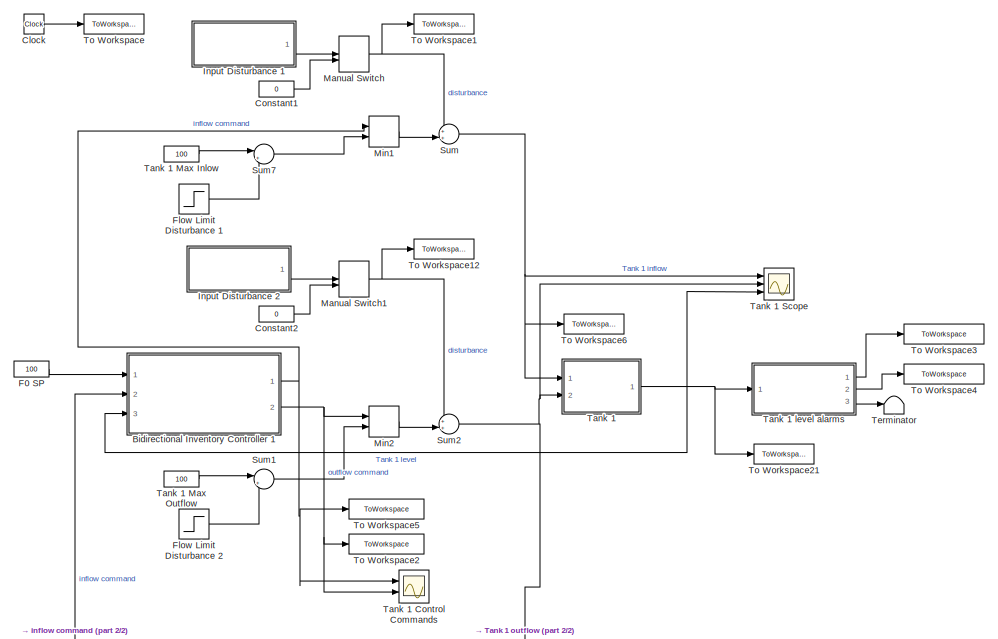
[diagram: root canvas - part 1/2, full width, top band]
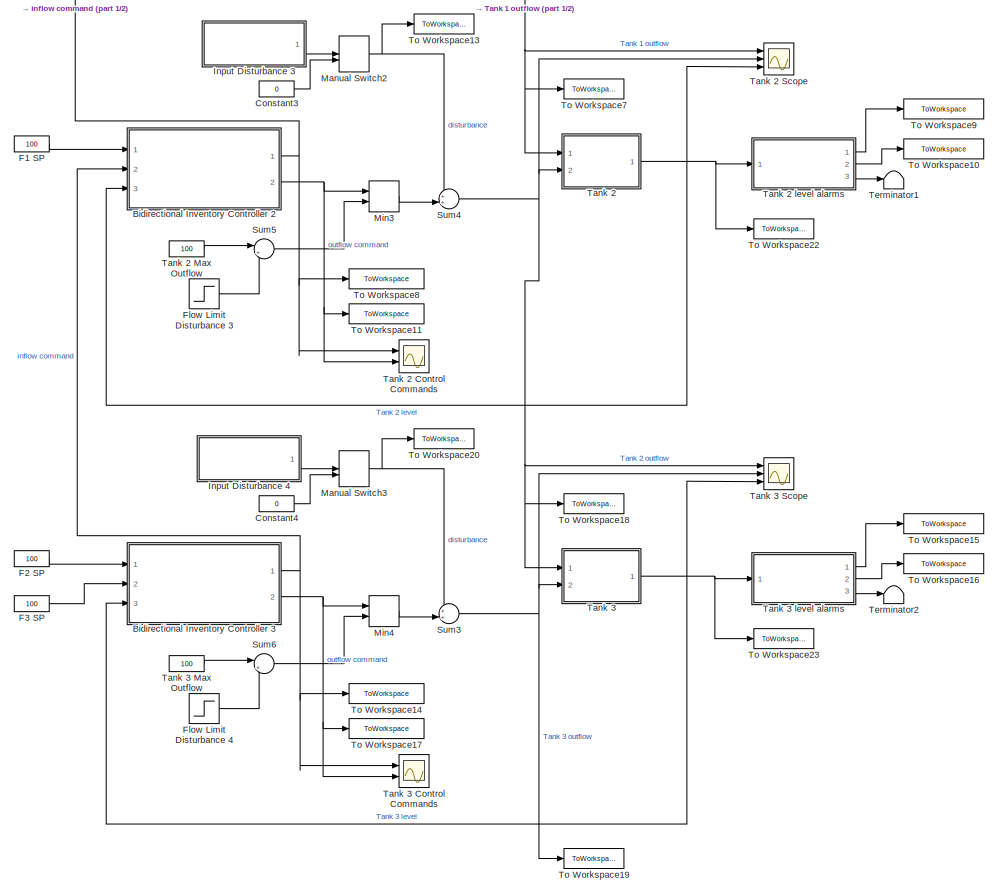
[diagram: root canvas - part 2/2, full width, bottom band]
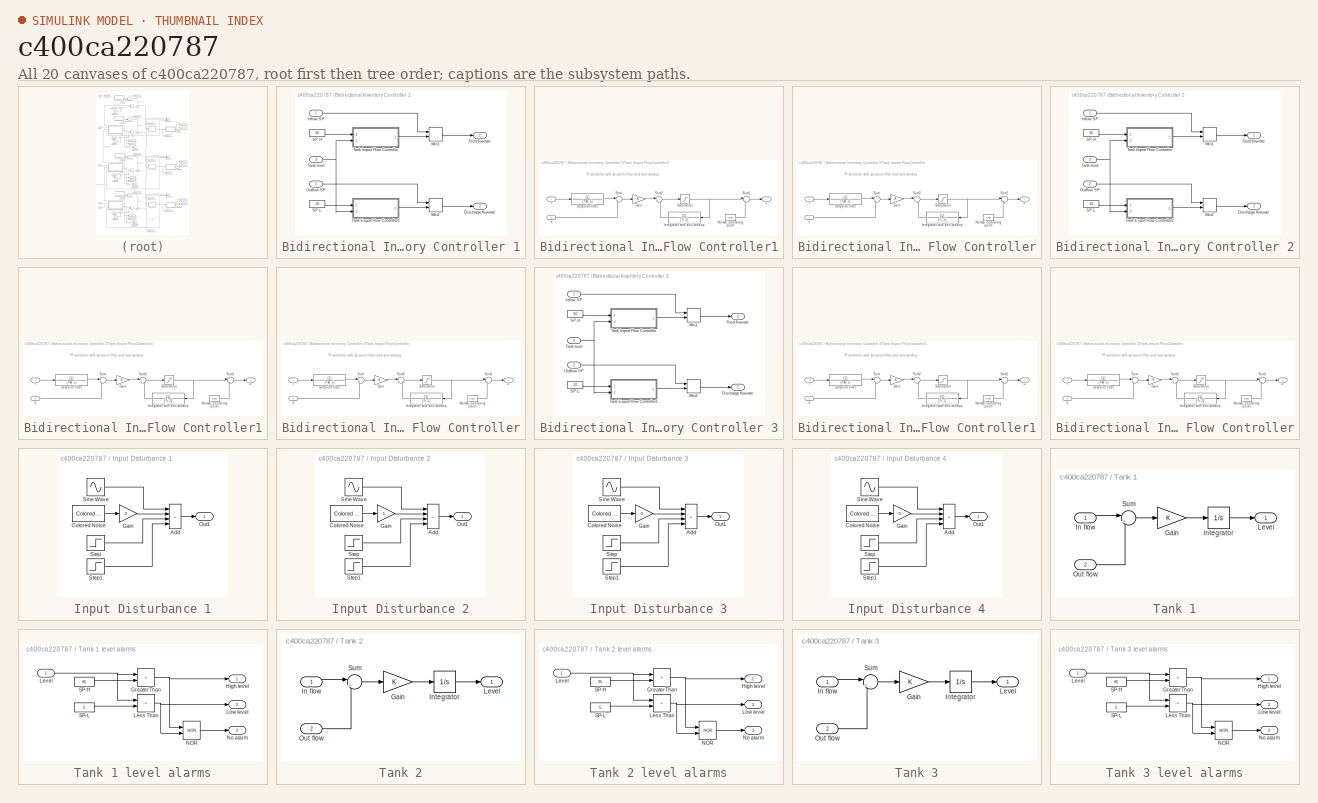
[diagram: thumbnail index - all 20 canvases of the model, root first then tree order]
MODEL slx_c400ca220787
KIND model
CONFIG AbsTol = auto
CONFIG EnableMultiTasking = off
CONFIG FixedStep = auto
CONFIG MaxStep = auto
CONFIG MinStep = auto
CONFIG RelTol = 1e-3
CONFIG SampleTimeConstraint = Unconstrained
CONFIG SolverName = VariableStepAuto
CONFIG StartTime = 0.0
CONFIG StopTime = 1000
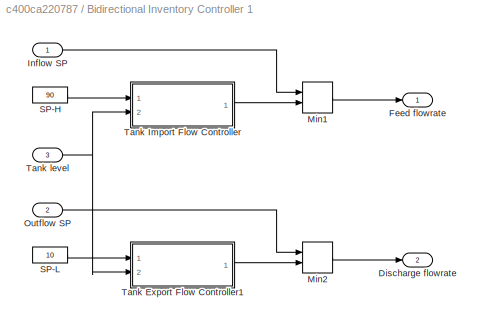
BLOCK [SubSystem] Bidirectional Inventory Controller 1
  Ports = [3, 2]
  RequestExecContextInheritance = off
BLOCK [Outport] Bidirectional Inventory Controller 1/Discharge flowrate
  Port = 2
BLOCK [Outport] Bidirectional Inventory Controller 1/Feed flowrate
BLOCK [Inport] Bidirectional Inventory Controller 1/Inflow SP
BLOCK [MinMax] Bidirectional Inventory Controller 1/Min1
  Inputs = 2
  Ports = [2, 1]
BLOCK [MinMax] Bidirectional Inventory Controller 1/Min2
  Inputs = 2
  Ports = [2, 1]
BLOCK [Inport] Bidirectional Inventory Controller 1/Outflow SP
  Port = 2
BLOCK [Constant] Bidirectional Inventory Controller 1/SP-H
  Value = 90
BLOCK [Constant] Bidirectional Inventory Controller 1/SP-L
  Value = 10
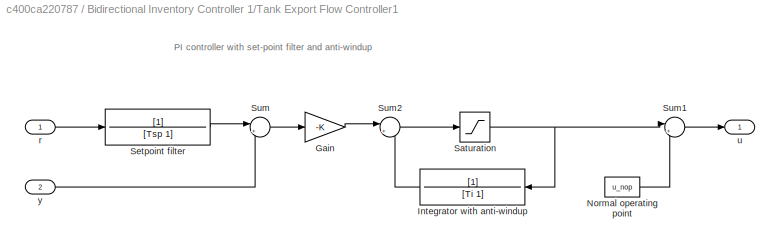
BLOCK [SubSystem] Bidirectional Inventory Controller 1/Tank Export Flow Controller1
  Ports = [2, 1]
  RequestExecContextInheritance = off
BLOCK [Gain] Bidirectional Inventory Controller 1/Tank Export Flow Controller1/Gain
  Gain = -K
BLOCK [TransferFcn] Bidirectional Inventory Controller 1/Tank Export Flow Controller1/Integrator with anti-windup
  Denominator = [Ti 1]
BLOCK [Constant] Bidirectional Inventory Controller 1/Tank Export Flow Controller1/Normal operating point
  Value = u_nop
BLOCK [Saturate] Bidirectional Inventory Controller 1/Tank Export Flow Controller1/Saturation
  LowerLimit = -50
  UpperLimit = 50
BLOCK [TransferFcn] Bidirectional Inventory Controller 1/Tank Export Flow Controller1/Setpoint filter
  Denominator = [Tsp 1]
BLOCK [Sum] Bidirectional Inventory Controller 1/Tank Export Flow Controller1/Sum
  Inputs = |+-
  Ports = [2, 1]
BLOCK [Sum] Bidirectional Inventory Controller 1/Tank Export Flow Controller1/Sum1
  Inputs = |++
  Ports = [2, 1]
BLOCK [Sum] Bidirectional Inventory Controller 1/Tank Export Flow Controller1/Sum2
  Inputs = |++
  Ports = [2, 1]
BLOCK [Inport] Bidirectional Inventory Controller 1/Tank Export Flow Controller1/r
BLOCK [Outport] Bidirectional Inventory Controller 1/Tank Export Flow Controller1/u
BLOCK [Inport] Bidirectional Inventory Controller 1/Tank Export Flow Controller1/y
  Port = 2
BLOCK [SubSystem] Bidirectional Inventory Controller 1/Tank Import Flow Controller
  Ports = [2, 1]
  RequestExecContextInheritance = off
BLOCK [Gain] Bidirectional Inventory Controller 1/Tank Import Flow Controller/Gain
  Gain = K
BLOCK [TransferFcn] Bidirectional Inventory Controller 1/Tank Import Flow Controller/Integrator with anti-windup
  Denominator = [Ti 1]
BLOCK [Constant] Bidirectional Inventory Controller 1/Tank Import Flow Controller/Normal operating point
  Value = u_nop
BLOCK [Saturate] Bidirectional Inventory Controller 1/Tank Import Flow Controller/Saturation
  LowerLimit = -50
  UpperLimit = 50
BLOCK [TransferFcn] Bidirectional Inventory Controller 1/Tank Import Flow Controller/Setpoint filter
  Denominator = [Tsp 1]
BLOCK [Sum] Bidirectional Inventory Controller 1/Tank Import Flow Controller/Sum
  Inputs = |+-
  Ports = [2, 1]
BLOCK [Sum] Bidirectional Inventory Controller 1/Tank Import Flow Controller/Sum1
  Inputs = |++
  Ports = [2, 1]
BLOCK [Sum] Bidirectional Inventory Controller 1/Tank Import Flow Controller/Sum2
  Inputs = |++
  Ports = [2, 1]
BLOCK [Inport] Bidirectional Inventory Controller 1/Tank Import Flow Controller/r
BLOCK [Outport] Bidirectional Inventory Controller 1/Tank Import Flow Controller/u
BLOCK [Inport] Bidirectional Inventory Controller 1/Tank Import Flow Controller/y
  Port = 2
BLOCK [Inport] Bidirectional Inventory Controller 1/Tank level
  Port = 3
BLOCK [SubSystem] Bidirectional Inventory Controller 2
  Ports = [3, 2]
  RequestExecContextInheritance = off
BLOCK [Outport] Bidirectional Inventory Controller 2/Discharge flowrate
  Port = 2
BLOCK [Outport] Bidirectional Inventory Controller 2/Feed flowrate
BLOCK [Inport] Bidirectional Inventory Controller 2/Inflow SP
BLOCK [MinMax] Bidirectional Inventory Controller 2/Min1
  Inputs = 2
  Ports = [2, 1]
BLOCK [MinMax] Bidirectional Inventory Controller 2/Min2
  Inputs = 2
  Ports = [2, 1]
BLOCK [Inport] Bidirectional Inventory Controller 2/Outflow SP
  Port = 2
BLOCK [Constant] Bidirectional Inventory Controller 2/SP-H
  Value = 90
BLOCK [Constant] Bidirectional Inventory Controller 2/SP-L
  Value = 10
BLOCK [SubSystem] Bidirectional Inventory Controller 2/Tank Export Flow Controller1
  Ports = [2, 1]
  RequestExecContextInheritance = off
BLOCK [Gain] Bidirectional Inventory Controller 2/Tank Export Flow Controller1/Gain
  Gain = -K
BLOCK [TransferFcn] Bidirectional Inventory Controller 2/Tank Export Flow Controller1/Integrator with anti-windup
  Denominator = [Ti 1]
BLOCK [Constant] Bidirectional Inventory Controller 2/Tank Export Flow Controller1/Normal operating point
  Value = u_nop
BLOCK [Saturate] Bidirectional Inventory Controller 2/Tank Export Flow Controller1/Saturation
  LowerLimit = -50
  UpperLimit = 50
BLOCK [TransferFcn] Bidirectional Inventory Controller 2/Tank Export Flow Controller1/Setpoint filter
  Denominator = [Tsp 1]
BLOCK [Sum] Bidirectional Inventory Controller 2/Tank Export Flow Controller1/Sum
  Inputs = |+-
  Ports = [2, 1]
BLOCK [Sum] Bidirectional Inventory Controller 2/Tank Export Flow Controller1/Sum1
  Inputs = |++
  Ports = [2, 1]
BLOCK [Sum] Bidirectional Inventory Controller 2/Tank Export Flow Controller1/Sum2
  Inputs = |++
  Ports = [2, 1]
BLOCK [Inport] Bidirectional Inventory Controller 2/Tank Export Flow Controller1/r
BLOCK [Outport] Bidirectional Inventory Controller 2/Tank Export Flow Controller1/u
BLOCK [Inport] Bidirectional Inventory Controller 2/Tank Export Flow Controller1/y
  Port = 2
BLOCK [SubSystem] Bidirectional Inventory Controller 2/Tank Import Flow Controller
  Ports = [2, 1]
  RequestExecContextInheritance = off
BLOCK [Gain] Bidirectional Inventory Controller 2/Tank Import Flow Controller/Gain
  Gain = K
BLOCK [TransferFcn] Bidirectional Inventory Controller 2/Tank Import Flow Controller/Integrator with anti-windup
  Denominator = [Ti 1]
BLOCK [Constant] Bidirectional Inventory Controller 2/Tank Import Flow Controller/Normal operating point
  Value = u_nop
BLOCK [Saturate] Bidirectional Inventory Controller 2/Tank Import Flow Controller/Saturation
  LowerLimit = -50
  UpperLimit = 50
BLOCK [TransferFcn] Bidirectional Inventory Controller 2/Tank Import Flow Controller/Setpoint filter
  Denominator = [Tsp 1]
BLOCK [Sum] Bidirectional Inventory Controller 2/Tank Import Flow Controller/Sum
  Inputs = |+-
  Ports = [2, 1]
BLOCK [Sum] Bidirectional Inventory Controller 2/Tank Import Flow Controller/Sum1
  Inputs = |++
  Ports = [2, 1]
BLOCK [Sum] Bidirectional Inventory Controller 2/Tank Import Flow Controller/Sum2
  Inputs = |++
  Ports = [2, 1]
BLOCK [Inport] Bidirectional Inventory Controller 2/Tank Import Flow Controller/r
BLOCK [Outport] Bidirectional Inventory Controller 2/Tank Import Flow Controller/u
BLOCK [Inport] Bidirectional Inventory Controller 2/Tank Import Flow Controller/y
  Port = 2
BLOCK [Inport] Bidirectional Inventory Controller 2/Tank level
  Port = 3
BLOCK [SubSystem] Bidirectional Inventory Controller 3
  Ports = [3, 2]
  RequestExecContextInheritance = off
BLOCK [Outport] Bidirectional Inventory Controller 3/Discharge flowrate
  Port = 2
BLOCK [Outport] Bidirectional Inventory Controller 3/Feed flowrate
BLOCK [Inport] Bidirectional Inventory Controller 3/Inflow SP
BLOCK [MinMax] Bidirectional Inventory Controller 3/Min1
  Inputs = 2
  Ports = [2, 1]
BLOCK [MinMax] Bidirectional Inventory Controller 3/Min2
  Inputs = 2
  Ports = [2, 1]
BLOCK [Inport] Bidirectional Inventory Controller 3/Outflow SP
  Port = 2
BLOCK [Constant] Bidirectional Inventory Controller 3/SP-H
  Value = 90
BLOCK [Constant] Bidirectional Inventory Controller 3/SP-L
  Value = 10
BLOCK [SubSystem] Bidirectional Inventory Controller 3/Tank Export Flow Controller1
  Ports = [2, 1]
  RequestExecContextInheritance = off
BLOCK [Gain] Bidirectional Inventory Controller 3/Tank Export Flow Controller1/Gain
  Gain = -K
BLOCK [TransferFcn] Bidirectional Inventory Controller 3/Tank Export Flow Controller1/Integrator with anti-windup
  Denominator = [Ti 1]
BLOCK [Constant] Bidirectional Inventory Controller 3/Tank Export Flow Controller1/Normal operating point
  Value = u_nop
BLOCK [Saturate] Bidirectional Inventory Controller 3/Tank Export Flow Controller1/Saturation
  LowerLimit = -50
  UpperLimit = 50
BLOCK [TransferFcn] Bidirectional Inventory Controller 3/Tank Export Flow Controller1/Setpoint filter
  Denominator = [Tsp 1]
BLOCK [Sum] Bidirectional Inventory Controller 3/Tank Export Flow Controller1/Sum
  Inputs = |+-
  Ports = [2, 1]
BLOCK [Sum] Bidirectional Inventory Controller 3/Tank Export Flow Controller1/Sum1
  Inputs = |++
  Ports = [2, 1]
BLOCK [Sum] Bidirectional Inventory Controller 3/Tank Export Flow Controller1/Sum2
  Inputs = |++
  Ports = [2, 1]
BLOCK [Inport] Bidirectional Inventory Controller 3/Tank Export Flow Controller1/r
BLOCK [Outport] Bidirectional Inventory Controller 3/Tank Export Flow Controller1/u
BLOCK [Inport] Bidirectional Inventory Controller 3/Tank Export Flow Controller1/y
  Port = 2
BLOCK [SubSystem] Bidirectional Inventory Controller 3/Tank Import Flow Controller
  Ports = [2, 1]
  RequestExecContextInheritance = off
BLOCK [Gain] Bidirectional Inventory Controller 3/Tank Import Flow Controller/Gain
  Gain = K
BLOCK [TransferFcn] Bidirectional Inventory Controller 3/Tank Import Flow Controller/Integrator with anti-windup
  Denominator = [Ti 1]
BLOCK [Constant] Bidirectional Inventory Controller 3/Tank Import Flow Controller/Normal operating point
  Value = u_nop
BLOCK [Saturate] Bidirectional Inventory Controller 3/Tank Import Flow Controller/Saturation
  LowerLimit = -50
  UpperLimit = 50
BLOCK [TransferFcn] Bidirectional Inventory Controller 3/Tank Import Flow Controller/Setpoint filter
  Denominator = [Tsp 1]
BLOCK [Sum] Bidirectional Inventory Controller 3/Tank Import Flow Controller/Sum
  Inputs = |+-
  Ports = [2, 1]
BLOCK [Sum] Bidirectional Inventory Controller 3/Tank Import Flow Controller/Sum1
  Inputs = |++
  Ports = [2, 1]
BLOCK [Sum] Bidirectional Inventory Controller 3/Tank Import Flow Controller/Sum2
  Inputs = |++
  Ports = [2, 1]
BLOCK [Inport] Bidirectional Inventory Controller 3/Tank Import Flow Controller/r
BLOCK [Outport] Bidirectional Inventory Controller 3/Tank Import Flow Controller/u
BLOCK [Inport] Bidirectional Inventory Controller 3/Tank Import Flow Controller/y
  Port = 2
BLOCK [Inport] Bidirectional Inventory Controller 3/Tank level
  Port = 3
BLOCK [Clock] Clock
BLOCK [Constant] Constant1
  SampleTime = 1
  Value = 0
BLOCK [Constant] Constant2
  SampleTime = 1
  Value = 0
BLOCK [Constant] Constant3
  SampleTime = 1
  Value = 0
BLOCK [Constant] Constant4
  SampleTime = 1
  Value = 0
BLOCK [Constant] F0 SP
  Value = 100
BLOCK [Constant] F1 SP
  Value = 100
  VectorParams1D = off
BLOCK [Constant] F2 SP
  Value = 100
BLOCK [Constant] F3 SP
  Value = 100
  VectorParams1D = off
BLOCK [Step] Flow Limit Disturbance 1
  After = -40
  SampleTime = 0
  Time = 100
BLOCK [Step] Flow Limit Disturbance 2
  After = 0
  SampleTime = 0
  Time = 500
BLOCK [Step] Flow Limit Disturbance 3
  After = 0
  SampleTime = 0
  Time = 100
BLOCK [Step] Flow Limit Disturbance 4
  After = -40
  SampleTime = 0
  Time = 100
BLOCK [SubSystem] Input Disturbance 1
  Ports = [0, 1]
  RequestExecContextInheritance = off
BLOCK [Sum] Input Disturbance 1/Add
  IconShape = rectangular
  Inputs = ++++
  Ports = [4, 1]
BLOCK [Reference] Input Disturbance 1/Colored Noise  REF=dspsrcs4/Colored Noise
  Ports = [0, 1]
  SourceBlock = dspsrcs4/Colored Noise
  SourceProductBaseCode = DS
  SourceType = dsp.simulink.ColoredNoise
BLOCK [Gain] Input Disturbance 1/Gain
  Gain = 3
BLOCK [Outport] Input Disturbance 1/Out1
BLOCK [Sin] Input Disturbance 1/Sine Wave
  Amplitude = 0
  Frequency = 1/60
  Ports = [0, 1]
  SampleTime = 0
BLOCK [Step] Input Disturbance 1/Step
  After = 0
  SampleTime = 0
  Time = 100
BLOCK [Step] Input Disturbance 1/Step1
  After = 0
  SampleTime = 0
  Time = 200
BLOCK [SubSystem] Input Disturbance 2
  Ports = [0, 1]
  RequestExecContextInheritance = off
BLOCK [Sum] Input Disturbance 2/Add
  IconShape = rectangular
  Inputs = ++++
  Ports = [4, 1]
BLOCK [Reference] Input Disturbance 2/Colored Noise  REF=dspsrcs4/Colored Noise
  Ports = [0, 1]
  SourceBlock = dspsrcs4/Colored Noise
  SourceProductBaseCode = DS
  SourceType = dsp.simulink.ColoredNoise
BLOCK [Gain] Input Disturbance 2/Gain
  Gain = 5
BLOCK [Outport] Input Disturbance 2/Out1
BLOCK [Sin] Input Disturbance 2/Sine Wave
  Amplitude = 10
  Frequency = 1/60
  Ports = [0, 1]
  SampleTime = 0
BLOCK [Step] Input Disturbance 2/Step
  After = 0
  SampleTime = 0
  Time = 100
BLOCK [Step] Input Disturbance 2/Step1
  After = 0
  SampleTime = 0
  Time = 200
BLOCK [SubSystem] Input Disturbance 3
  Ports = [0, 1]
  RequestExecContextInheritance = off
BLOCK [Sum] Input Disturbance 3/Add
  IconShape = rectangular
  Inputs = ++++
  Ports = [4, 1]
BLOCK [Reference] Input Disturbance 3/Colored Noise  REF=dspsrcs4/Colored Noise
  Ports = [0, 1]
  SourceBlock = dspsrcs4/Colored Noise
  SourceProductBaseCode = DS
  SourceType = dsp.simulink.ColoredNoise
BLOCK [Gain] Input Disturbance 3/Gain
  Gain = 0
BLOCK [Outport] Input Disturbance 3/Out1
BLOCK [Sin] Input Disturbance 3/Sine Wave
  Amplitude = 10
  Frequency = 1/60
  Ports = [0, 1]
  SampleTime = 0
BLOCK [Step] Input Disturbance 3/Step
  After = 0
  SampleTime = 0
  Time = 100
BLOCK [Step] Input Disturbance 3/Step1
  After = 0
  SampleTime = 0
  Time = 200
BLOCK [SubSystem] Input Disturbance 4
  Ports = [0, 1]
  RequestExecContextInheritance = off
BLOCK [Sum] Input Disturbance 4/Add
  IconShape = rectangular
  Inputs = ++++
  Ports = [4, 1]
BLOCK [Reference] Input Disturbance 4/Colored Noise  REF=dspsrcs4/Colored Noise
  Ports = [0, 1]
  SourceBlock = dspsrcs4/Colored Noise
  SourceProductBaseCode = DS
  SourceType = dsp.simulink.ColoredNoise
BLOCK [Gain] Input Disturbance 4/Gain
  Gain = 0
BLOCK [Outport] Input Disturbance 4/Out1
BLOCK [Sin] Input Disturbance 4/Sine Wave
  Amplitude = 0
  Frequency = 1/60
  Ports = [0, 1]
  SampleTime = 0
BLOCK [Step] Input Disturbance 4/Step
  After = 0
  SampleTime = 0
  Time = 100
BLOCK [Step] Input Disturbance 4/Step1
  After = 0
  SampleTime = 0
  Time = 200
BLOCK [ManualSwitch] Manual Switch
  CurrentSetting = 0
BLOCK [ManualSwitch] Manual Switch1
  CurrentSetting = 0
BLOCK [ManualSwitch] Manual Switch2
  CurrentSetting = 0
BLOCK [ManualSwitch] Manual Switch3
  CurrentSetting = 0
BLOCK [MinMax] Min1
  Inputs = 2
  Ports = [2, 1]
BLOCK [MinMax] Min2
  Inputs = 2
  Ports = [2, 1]
BLOCK [MinMax] Min3
  Inputs = 2
  Ports = [2, 1]
BLOCK [MinMax] Min4
  Inputs = 2
  Ports = [2, 1]
BLOCK [Sum] Sum
  Inputs = ++|
  Ports = [2, 1]
BLOCK [Sum] Sum1
  Inputs = |++
  Ports = [2, 1]
BLOCK [Sum] Sum2
  Inputs = ++|
  Ports = [2, 1]
BLOCK [Sum] Sum3
  Inputs = ++|
  Ports = [2, 1]
BLOCK [Sum] Sum4
  Inputs = ++|
  Ports = [2, 1]
BLOCK [Sum] Sum5
  Inputs = |++
  Ports = [2, 1]
BLOCK [Sum] Sum6
  Inputs = |++
  Ports = [2, 1]
BLOCK [Sum] Sum7
  Inputs = |++
  Ports = [2, 1]
BLOCK [SubSystem] Tank 1
  Ports = [2, 1]
  RequestExecContextInheritance = off
BLOCK [Scope] Tank 1 Control Commands
  Floating = off
  NumInputPorts = 2
  Ports = [2]
  ScopeSpecificationString = Simulink.scopes.TimeScopeBlockCfg('CurrentConfiguration', extmgr.ConfigurationSet(extmgr.Configuration('Core','General UI',true,'FigureColor',[1 1 1]),extmgr.Configuration('Core','Source UI',true),extmgr.Configuration('Sources','WiredSimulink',true,'DataLoggingVariableName','ScopeData1'),extmgr.Configuration('Visuals','Time Domain',true,'SerializedDisplays',{struct('MinYLimReal','-12.5','MaxYLimRe...<+1967ch>
BLOCK [Constant] Tank 1 Max Inlow
  Value = 100
BLOCK [Constant] Tank 1 Max Outflow
  Value = 100
BLOCK [Scope] Tank 1 Scope
  Floating = off
  NumInputPorts = 3
  Ports = [3]
  ScopeSpecificationString = Simulink.scopes.TimeScopeBlockCfg('CurrentConfiguration', extmgr.ConfigurationSet(extmgr.Configuration('Core','General UI',true,'FigureColor',[1 1 1]),extmgr.Configuration('Core','Source UI',true),extmgr.Configuration('Sources','WiredSimulink',true,'DataLoggingVariableName','ScopeData1'),extmgr.Configuration('Visuals','Time Domain',true,'SerializedDisplays',{struct('MinYLimReal','-12.5','MaxYLimRe...<+1980ch>
BLOCK [SubSystem] Tank 1 level alarms
  Ports = [1, 3]
  RequestExecContextInheritance = off
BLOCK [RelationalOperator] Tank 1 level alarms/GreaterThan
  InputSameDT = off
  Operator = >
  OutDataTypeStr = boolean
  Ports = [2, 1]
  RndMeth = Simplest
BLOCK [Outport] Tank 1 level alarms/High level
BLOCK [RelationalOperator] Tank 1 level alarms/Less Than
  InputSameDT = off
  Operator = <
  OutDataTypeStr = boolean
  Ports = [2, 1]
  RndMeth = Simplest
BLOCK [Inport] Tank 1 level alarms/Level
BLOCK [Outport] Tank 1 level alarms/Low level
  Port = 2
BLOCK [Logic] Tank 1 level alarms/NOR
  AllPortsSameDT = off
  IconShape = distinctive
  Operator = NOR
  OutDataTypeStr = boolean
  Ports = [2, 1]
BLOCK [Outport] Tank 1 level alarms/No alarm
  Port = 3
BLOCK [Constant] Tank 1 level alarms/SP-H
  Value = 95
BLOCK [Constant] Tank 1 level alarms/SP-L
  Value = 5
BLOCK [Gain] Tank 1/Gain
  Gain = K
BLOCK [Inport] Tank 1/In flow
BLOCK [Integrator] Tank 1/Integrator
  InitialCondition = y0
  Ports = [1, 1]
BLOCK [Outport] Tank 1/Level
  InitialOutput = 0
BLOCK [Inport] Tank 1/Out flow
  Port = 2
BLOCK [Sum] Tank 1/Sum
  Inputs = |+-
  Ports = [2, 1]
BLOCK [SubSystem] Tank 2
  Ports = [2, 1]
  RequestExecContextInheritance = off
BLOCK [Scope] Tank 2 Control Commands
  Floating = off
  NumInputPorts = 2
  Ports = [2]
  ScopeSpecificationString = Simulink.scopes.TimeScopeBlockCfg('CurrentConfiguration', extmgr.ConfigurationSet(extmgr.Configuration('Core','General UI',true,'FigureColor',[1 1 1]),extmgr.Configuration('Core','Source UI',true),extmgr.Configuration('Sources','WiredSimulink',true,'DataLoggingVariableName','ScopeData2'),extmgr.Configuration('Visuals','Time Domain',true,'SerializedDisplays',{struct('MinYLimReal','-12.5','MaxYLimRe...<+1968ch>
BLOCK [Constant] Tank 2 Max Outflow
  Value = 100
BLOCK [Scope] Tank 2 Scope
  Floating = off
  NumInputPorts = 3
  Ports = [3]
  ScopeSpecificationString = Simulink.scopes.TimeScopeBlockCfg('CurrentConfiguration', extmgr.ConfigurationSet(extmgr.Configuration('Core','General UI',true,'FigureColor',[1 1 1]),extmgr.Configuration('Core','Source UI',true),extmgr.Configuration('Sources','WiredSimulink',true,'DataLoggingVariableName','ScopeData3'),extmgr.Configuration('Visuals','Time Domain',true,'SerializedDisplays',{struct('MinYLimReal','-12.5','MaxYLimRe...<+1982ch>
BLOCK [SubSystem] Tank 2 level alarms
  Ports = [1, 3]
  RequestExecContextInheritance = off
BLOCK [RelationalOperator] Tank 2 level alarms/GreaterThan
  InputSameDT = off
  Operator = >
  OutDataTypeStr = boolean
  Ports = [2, 1]
  RndMeth = Simplest
BLOCK [Outport] Tank 2 level alarms/High level
BLOCK [RelationalOperator] Tank 2 level alarms/Less Than
  InputSameDT = off
  Operator = <
  OutDataTypeStr = boolean
  Ports = [2, 1]
  RndMeth = Simplest
BLOCK [Inport] Tank 2 level alarms/Level
BLOCK [Outport] Tank 2 level alarms/Low level
  Port = 2
BLOCK [Logic] Tank 2 level alarms/NOR
  AllPortsSameDT = off
  IconShape = distinctive
  Operator = NOR
  OutDataTypeStr = boolean
  Ports = [2, 1]
BLOCK [Outport] Tank 2 level alarms/No alarm
  Port = 3
BLOCK [Constant] Tank 2 level alarms/SP-H
  Value = 95
BLOCK [Constant] Tank 2 level alarms/SP-L
  Value = 5
BLOCK [Gain] Tank 2/Gain
  Gain = K
BLOCK [Inport] Tank 2/In flow
BLOCK [Integrator] Tank 2/Integrator
  InitialCondition = y0
  Ports = [1, 1]
BLOCK [Outport] Tank 2/Level
  InitialOutput = 0
BLOCK [Inport] Tank 2/Out flow
  Port = 2
BLOCK [Sum] Tank 2/Sum
  Inputs = |+-
  Ports = [2, 1]
BLOCK [SubSystem] Tank 3
  Ports = [2, 1]
  RequestExecContextInheritance = off
BLOCK [Scope] Tank 3 Control Commands
  Floating = off
  NumInputPorts = 2
  Ports = [2]
  ScopeSpecificationString = Simulink.scopes.TimeScopeBlockCfg('CurrentConfiguration', extmgr.ConfigurationSet(extmgr.Configuration('Core','General UI',true,'FigureColor',[1 1 1]),extmgr.Configuration('Core','Source UI',true),extmgr.Configuration('Sources','WiredSimulink',true,'DataLoggingVariableName','ScopeData4'),extmgr.Configuration('Visuals','Time Domain',true,'SerializedDisplays',{struct('MinYLimReal','-12.5','MaxYLimRe...<+1968ch>
BLOCK [Constant] Tank 3 Max Outflow
  Value = 100
BLOCK [Scope] Tank 3 Scope
  Floating = off
  NumInputPorts = 3
  Ports = [3]
  ScopeSpecificationString = Simulink.scopes.TimeScopeBlockCfg('CurrentConfiguration', extmgr.ConfigurationSet(extmgr.Configuration('Core','General UI',true,'FigureColor',[1 1 1]),extmgr.Configuration('Core','Source UI',true),extmgr.Configuration('Sources','WiredSimulink',true,'DataLoggingVariableName','ScopeData5'),extmgr.Configuration('Visuals','Time Domain',true,'SerializedDisplays',{struct('MinYLimReal','-12.5','MaxYLimRe...<+1982ch>
BLOCK [SubSystem] Tank 3 level alarms
  Ports = [1, 3]
  RequestExecContextInheritance = off
BLOCK [RelationalOperator] Tank 3 level alarms/GreaterThan
  InputSameDT = off
  Operator = >
  OutDataTypeStr = boolean
  Ports = [2, 1]
  RndMeth = Simplest
BLOCK [Outport] Tank 3 level alarms/High level
BLOCK [RelationalOperator] Tank 3 level alarms/Less Than
  InputSameDT = off
  Operator = <
  OutDataTypeStr = boolean
  Ports = [2, 1]
  RndMeth = Simplest
BLOCK [Inport] Tank 3 level alarms/Level
BLOCK [Outport] Tank 3 level alarms/Low level
  Port = 2
BLOCK [Logic] Tank 3 level alarms/NOR
  AllPortsSameDT = off
  IconShape = distinctive
  Operator = NOR
  OutDataTypeStr = boolean
  Ports = [2, 1]
BLOCK [Outport] Tank 3 level alarms/No alarm
  Port = 3
BLOCK [Constant] Tank 3 level alarms/SP-H
  Value = 95
BLOCK [Constant] Tank 3 level alarms/SP-L
  Value = 5
BLOCK [Gain] Tank 3/Gain
  Gain = K
BLOCK [Inport] Tank 3/In flow
BLOCK [Integrator] Tank 3/Integrator
  InitialCondition = y0
  Ports = [1, 1]
BLOCK [Outport] Tank 3/Level
  InitialOutput = 0
BLOCK [Inport] Tank 3/Out flow
  Port = 2
BLOCK [Sum] Tank 3/Sum
  Inputs = |+-
  Ports = [2, 1]
BLOCK [Terminator] Terminator
BLOCK [Terminator] Terminator1
BLOCK [Terminator] Terminator2
BLOCK [ToWorkspace] To Workspace
  FixptAsFi = on
  MaxDataPoints = inf
  Ports = [1]
  SampleTime = 1
  VariableName = t
BLOCK [ToWorkspace] To Workspace1
  FixptAsFi = on
  MaxDataPoints = inf
  Ports = [1]
  SampleTime = 1
  Save2DSignal = 2-D array (concatenate along first dimension)
  VariableName = p1
BLOCK [ToWorkspace] To Workspace10
  FixptAsFi = on
  MaxDataPoints = inf
  Ports = [1]
  SampleTime = 1
  VariableName = LA2_L
BLOCK [ToWorkspace] To Workspace11
  FixptAsFi = on
  MaxDataPoints = inf
  Ports = [1]
  SampleTime = 1
  VariableName = u2_out
BLOCK [ToWorkspace] To Workspace12
  FixptAsFi = on
  MaxDataPoints = inf
  Ports = [1]
  SampleTime = 1
  Save2DSignal = 2-D array (concatenate along first dimension)
  VariableName = p2
BLOCK [ToWorkspace] To Workspace13
  FixptAsFi = on
  MaxDataPoints = inf
  Ports = [1]
  SampleTime = 1
  Save2DSignal = 2-D array (concatenate along first dimension)
  VariableName = p3
BLOCK [ToWorkspace] To Workspace14
  FixptAsFi = on
  MaxDataPoints = inf
  Ports = [1]
  SampleTime = 1
  VariableName = u3_in
BLOCK [ToWorkspace] To Workspace15
  FixptAsFi = on
  MaxDataPoints = inf
  Ports = [1]
  SampleTime = 1
  VariableName = LA3_H
BLOCK [ToWorkspace] To Workspace16
  FixptAsFi = on
  MaxDataPoints = inf
  Ports = [1]
  SampleTime = 1
  VariableName = LA3_L
BLOCK [ToWorkspace] To Workspace17
  FixptAsFi = on
  MaxDataPoints = inf
  Ports = [1]
  SampleTime = 1
  VariableName = u3_out
BLOCK [ToWorkspace] To Workspace18
  FixptAsFi = on
  MaxDataPoints = inf
  Ports = [1]
  SampleTime = 1
  VariableName = F2
BLOCK [ToWorkspace] To Workspace19
  FixptAsFi = on
  MaxDataPoints = inf
  Ports = [1]
  SampleTime = 1
  VariableName = F3
BLOCK [ToWorkspace] To Workspace2
  FixptAsFi = on
  MaxDataPoints = inf
  Ports = [1]
  SampleTime = 1
  VariableName = u1_out
BLOCK [ToWorkspace] To Workspace20
  FixptAsFi = on
  MaxDataPoints = inf
  Ports = [1]
  SampleTime = 1
  Save2DSignal = 2-D array (concatenate along first dimension)
  VariableName = p4
BLOCK [ToWorkspace] To Workspace21
  FixptAsFi = on
  MaxDataPoints = inf
  Ports = [1]
  SampleTime = 1
  VariableName = L1
BLOCK [ToWorkspace] To Workspace22
  FixptAsFi = on
  MaxDataPoints = inf
  Ports = [1]
  SampleTime = 1
  VariableName = L2
BLOCK [ToWorkspace] To Workspace23
  FixptAsFi = on
  MaxDataPoints = inf
  Ports = [1]
  SampleTime = 1
  VariableName = L3
BLOCK [ToWorkspace] To Workspace3
  FixptAsFi = on
  MaxDataPoints = inf
  Ports = [1]
  SampleTime = 1
  VariableName = LA1_H
BLOCK [ToWorkspace] To Workspace4
  FixptAsFi = on
  MaxDataPoints = inf
  Ports = [1]
  SampleTime = 1
  VariableName = LA1_L
BLOCK [ToWorkspace] To Workspace5
  FixptAsFi = on
  MaxDataPoints = inf
  Ports = [1]
  SampleTime = 1
  VariableName = u1_in
BLOCK [ToWorkspace] To Workspace6
  FixptAsFi = on
  MaxDataPoints = inf
  Ports = [1]
  SampleTime = 1
  VariableName = F0
BLOCK [ToWorkspace] To Workspace7
  FixptAsFi = on
  MaxDataPoints = inf
  Ports = [1]
  SampleTime = 1
  VariableName = F1
BLOCK [ToWorkspace] To Workspace8
  FixptAsFi = on
  MaxDataPoints = inf
  Ports = [1]
  SampleTime = 1
  VariableName = u2_in
BLOCK [ToWorkspace] To Workspace9
  FixptAsFi = on
  MaxDataPoints = inf
  Ports = [1]
  SampleTime = 1
  VariableName = LA2_H
ANNOTATION Bidirectional Inventory Controller 1/Tank Export Flow Controller1: PI controller with set-point filter and anti-windup
ANNOTATION Bidirectional Inventory Controller 1/Tank Import Flow Controller: PI controller with set-point filter and anti-windup
ANNOTATION Bidirectional Inventory Controller 2/Tank Export Flow Controller1: PI controller with set-point filter and anti-windup
ANNOTATION Bidirectional Inventory Controller 2/Tank Import Flow Controller: PI controller with set-point filter and anti-windup
ANNOTATION Bidirectional Inventory Controller 3/Tank Export Flow Controller1: PI controller with set-point filter and anti-windup
ANNOTATION Bidirectional Inventory Controller 3/Tank Import Flow Controller: PI controller with set-point filter and anti-windup
LINE Bidirectional Inventory Controller 1/Inflow SP:1 -> Bidirectional Inventory Controller 1/Min1:1
LINE Bidirectional Inventory Controller 1/Min1:1 -> Bidirectional Inventory Controller 1/Feed flowrate:1
LINE Bidirectional Inventory Controller 1/Min2:1 -> Bidirectional Inventory Controller 1/Discharge flowrate:1
LINE Bidirectional Inventory Controller 1/Outflow SP:1 -> Bidirectional Inventory Controller 1/Min2:1
LINE Bidirectional Inventory Controller 1/SP-H:1 -> Bidirectional Inventory Controller 1/Tank Import Flow Controller:1
LINE Bidirectional Inventory Controller 1/SP-L:1 -> Bidirectional Inventory Controller 1/Tank Export Flow Controller1:1
LINE Bidirectional Inventory Controller 1/Tank Export Flow Controller1/Gain:1 -> Bidirectional Inventory Controller 1/Tank Export Flow Controller1/Sum2:1
LINE Bidirectional Inventory Controller 1/Tank Export Flow Controller1/Integrator with anti-windup:1 -> Bidirectional Inventory Controller 1/Tank Export Flow Controller1/Sum2:2
LINE Bidirectional Inventory Controller 1/Tank Export Flow Controller1/Normal operating point:1 -> Bidirectional Inventory Controller 1/Tank Export Flow Controller1/Sum1:2
NET Bidirectional Inventory Controller 1/Tank Export Flow Controller1/Saturation:1 -> Bidirectional Inventory Controller 1/Tank Export Flow Controller1/Integrator with anti-windup:1, Bidirectional Inventory Controller 1/Tank Export Flow Controller1/Sum1:1
LINE Bidirectional Inventory Controller 1/Tank Export Flow Controller1/Setpoint filter:1 -> Bidirectional Inventory Controller 1/Tank Export Flow Controller1/Sum:1
LINE Bidirectional Inventory Controller 1/Tank Export Flow Controller1/Sum1:1 -> Bidirectional Inventory Controller 1/Tank Export Flow Controller1/u:1
LINE Bidirectional Inventory Controller 1/Tank Export Flow Controller1/Sum2:1 -> Bidirectional Inventory Controller 1/Tank Export Flow Controller1/Saturation:1
LINE Bidirectional Inventory Controller 1/Tank Export Flow Controller1/Sum:1 -> Bidirectional Inventory Controller 1/Tank Export Flow Controller1/Gain:1
LINE Bidirectional Inventory Controller 1/Tank Export Flow Controller1/r:1 -> Bidirectional Inventory Controller 1/Tank Export Flow Controller1/Setpoint filter:1
LINE Bidirectional Inventory Controller 1/Tank Export Flow Controller1/y:1 -> Bidirectional Inventory Controller 1/Tank Export Flow Controller1/Sum:2
LINE Bidirectional Inventory Controller 1/Tank Export Flow Controller1:1 -> Bidirectional Inventory Controller 1/Min2:2
LINE Bidirectional Inventory Controller 1/Tank Import Flow Controller/Gain:1 -> Bidirectional Inventory Controller 1/Tank Import Flow Controller/Sum2:1
LINE Bidirectional Inventory Controller 1/Tank Import Flow Controller/Integrator with anti-windup:1 -> Bidirectional Inventory Controller 1/Tank Import Flow Controller/Sum2:2
LINE Bidirectional Inventory Controller 1/Tank Import Flow Controller/Normal operating point:1 -> Bidirectional Inventory Controller 1/Tank Import Flow Controller/Sum1:2
NET Bidirectional Inventory Controller 1/Tank Import Flow Controller/Saturation:1 -> Bidirectional Inventory Controller 1/Tank Import Flow Controller/Integrator with anti-windup:1, Bidirectional Inventory Controller 1/Tank Import Flow Controller/Sum1:1
LINE Bidirectional Inventory Controller 1/Tank Import Flow Controller/Setpoint filter:1 -> Bidirectional Inventory Controller 1/Tank Import Flow Controller/Sum:1
LINE Bidirectional Inventory Controller 1/Tank Import Flow Controller/Sum1:1 -> Bidirectional Inventory Controller 1/Tank Import Flow Controller/u:1
LINE Bidirectional Inventory Controller 1/Tank Import Flow Controller/Sum2:1 -> Bidirectional Inventory Controller 1/Tank Import Flow Controller/Saturation:1
LINE Bidirectional Inventory Controller 1/Tank Import Flow Controller/Sum:1 -> Bidirectional Inventory Controller 1/Tank Import Flow Controller/Gain:1
LINE Bidirectional Inventory Controller 1/Tank Import Flow Controller/r:1 -> Bidirectional Inventory Controller 1/Tank Import Flow Controller/Setpoint filter:1
LINE Bidirectional Inventory Controller 1/Tank Import Flow Controller/y:1 -> Bidirectional Inventory Controller 1/Tank Import Flow Controller/Sum:2
LINE Bidirectional Inventory Controller 1/Tank Import Flow Controller:1 -> Bidirectional Inventory Controller 1/Min1:2
NET Bidirectional Inventory Controller 1/Tank level:1 -> Bidirectional Inventory Controller 1/Tank Export Flow Controller1:2, Bidirectional Inventory Controller 1/Tank Import Flow Controller:2
NET Bidirectional Inventory Controller 1:1 -> Min1:1, Tank 1 Control Commands:1, To Workspace5:1
NET Bidirectional Inventory Controller 1:2 -> Min2:1, Tank 1 Control Commands:2, To Workspace2:1
LINE Bidirectional Inventory Controller 2/Inflow SP:1 -> Bidirectional Inventory Controller 2/Min1:1
LINE Bidirectional Inventory Controller 2/Min1:1 -> Bidirectional Inventory Controller 2/Feed flowrate:1
LINE Bidirectional Inventory Controller 2/Min2:1 -> Bidirectional Inventory Controller 2/Discharge flowrate:1
LINE Bidirectional Inventory Controller 2/Outflow SP:1 -> Bidirectional Inventory Controller 2/Min2:1
LINE Bidirectional Inventory Controller 2/SP-H:1 -> Bidirectional Inventory Controller 2/Tank Import Flow Controller:1
LINE Bidirectional Inventory Controller 2/SP-L:1 -> Bidirectional Inventory Controller 2/Tank Export Flow Controller1:1
LINE Bidirectional Inventory Controller 2/Tank Export Flow Controller1/Gain:1 -> Bidirectional Inventory Controller 2/Tank Export Flow Controller1/Sum2:1
LINE Bidirectional Inventory Controller 2/Tank Export Flow Controller1/Integrator with anti-windup:1 -> Bidirectional Inventory Controller 2/Tank Export Flow Controller1/Sum2:2
LINE Bidirectional Inventory Controller 2/Tank Export Flow Controller1/Normal operating point:1 -> Bidirectional Inventory Controller 2/Tank Export Flow Controller1/Sum1:2
NET Bidirectional Inventory Controller 2/Tank Export Flow Controller1/Saturation:1 -> Bidirectional Inventory Controller 2/Tank Export Flow Controller1/Integrator with anti-windup:1, Bidirectional Inventory Controller 2/Tank Export Flow Controller1/Sum1:1
LINE Bidirectional Inventory Controller 2/Tank Export Flow Controller1/Setpoint filter:1 -> Bidirectional Inventory Controller 2/Tank Export Flow Controller1/Sum:1
LINE Bidirectional Inventory Controller 2/Tank Export Flow Controller1/Sum1:1 -> Bidirectional Inventory Controller 2/Tank Export Flow Controller1/u:1
LINE Bidirectional Inventory Controller 2/Tank Export Flow Controller1/Sum2:1 -> Bidirectional Inventory Controller 2/Tank Export Flow Controller1/Saturation:1
LINE Bidirectional Inventory Controller 2/Tank Export Flow Controller1/Sum:1 -> Bidirectional Inventory Controller 2/Tank Export Flow Controller1/Gain:1
LINE Bidirectional Inventory Controller 2/Tank Export Flow Controller1/r:1 -> Bidirectional Inventory Controller 2/Tank Export Flow Controller1/Setpoint filter:1
LINE Bidirectional Inventory Controller 2/Tank Export Flow Controller1/y:1 -> Bidirectional Inventory Controller 2/Tank Export Flow Controller1/Sum:2
LINE Bidirectional Inventory Controller 2/Tank Export Flow Controller1:1 -> Bidirectional Inventory Controller 2/Min2:2
LINE Bidirectional Inventory Controller 2/Tank Import Flow Controller/Gain:1 -> Bidirectional Inventory Controller 2/Tank Import Flow Controller/Sum2:1
LINE Bidirectional Inventory Controller 2/Tank Import Flow Controller/Integrator with anti-windup:1 -> Bidirectional Inventory Controller 2/Tank Import Flow Controller/Sum2:2
LINE Bidirectional Inventory Controller 2/Tank Import Flow Controller/Normal operating point:1 -> Bidirectional Inventory Controller 2/Tank Import Flow Controller/Sum1:2
NET Bidirectional Inventory Controller 2/Tank Import Flow Controller/Saturation:1 -> Bidirectional Inventory Controller 2/Tank Import Flow Controller/Integrator with anti-windup:1, Bidirectional Inventory Controller 2/Tank Import Flow Controller/Sum1:1
LINE Bidirectional Inventory Controller 2/Tank Import Flow Controller/Setpoint filter:1 -> Bidirectional Inventory Controller 2/Tank Import Flow Controller/Sum:1
LINE Bidirectional Inventory Controller 2/Tank Import Flow Controller/Sum1:1 -> Bidirectional Inventory Controller 2/Tank Import Flow Controller/u:1
LINE Bidirectional Inventory Controller 2/Tank Import Flow Controller/Sum2:1 -> Bidirectional Inventory Controller 2/Tank Import Flow Controller/Saturation:1
LINE Bidirectional Inventory Controller 2/Tank Import Flow Controller/Sum:1 -> Bidirectional Inventory Controller 2/Tank Import Flow Controller/Gain:1
LINE Bidirectional Inventory Controller 2/Tank Import Flow Controller/r:1 -> Bidirectional Inventory Controller 2/Tank Import Flow Controller/Setpoint filter:1
LINE Bidirectional Inventory Controller 2/Tank Import Flow Controller/y:1 -> Bidirectional Inventory Controller 2/Tank Import Flow Controller/Sum:2
LINE Bidirectional Inventory Controller 2/Tank Import Flow Controller:1 -> Bidirectional Inventory Controller 2/Min1:2
NET Bidirectional Inventory Controller 2/Tank level:1 -> Bidirectional Inventory Controller 2/Tank Export Flow Controller1:2, Bidirectional Inventory Controller 2/Tank Import Flow Controller:2
NET Bidirectional Inventory Controller 2:1 -> Bidirectional Inventory Controller 1:2, Tank 2 Control Commands:1, To Workspace8:1
NET Bidirectional Inventory Controller 2:2 -> Min3:1, Tank 2 Control Commands:2, To Workspace11:1
LINE Bidirectional Inventory Controller 3/Inflow SP:1 -> Bidirectional Inventory Controller 3/Min1:1
LINE Bidirectional Inventory Controller 3/Min1:1 -> Bidirectional Inventory Controller 3/Feed flowrate:1
LINE Bidirectional Inventory Controller 3/Min2:1 -> Bidirectional Inventory Controller 3/Discharge flowrate:1
LINE Bidirectional Inventory Controller 3/Outflow SP:1 -> Bidirectional Inventory Controller 3/Min2:1
LINE Bidirectional Inventory Controller 3/SP-H:1 -> Bidirectional Inventory Controller 3/Tank Import Flow Controller:1
LINE Bidirectional Inventory Controller 3/SP-L:1 -> Bidirectional Inventory Controller 3/Tank Export Flow Controller1:1
LINE Bidirectional Inventory Controller 3/Tank Export Flow Controller1/Gain:1 -> Bidirectional Inventory Controller 3/Tank Export Flow Controller1/Sum2:1
LINE Bidirectional Inventory Controller 3/Tank Export Flow Controller1/Integrator with anti-windup:1 -> Bidirectional Inventory Controller 3/Tank Export Flow Controller1/Sum2:2
LINE Bidirectional Inventory Controller 3/Tank Export Flow Controller1/Normal operating point:1 -> Bidirectional Inventory Controller 3/Tank Export Flow Controller1/Sum1:2
NET Bidirectional Inventory Controller 3/Tank Export Flow Controller1/Saturation:1 -> Bidirectional Inventory Controller 3/Tank Export Flow Controller1/Integrator with anti-windup:1, Bidirectional Inventory Controller 3/Tank Export Flow Controller1/Sum1:1
LINE Bidirectional Inventory Controller 3/Tank Export Flow Controller1/Setpoint filter:1 -> Bidirectional Inventory Controller 3/Tank Export Flow Controller1/Sum:1
LINE Bidirectional Inventory Controller 3/Tank Export Flow Controller1/Sum1:1 -> Bidirectional Inventory Controller 3/Tank Export Flow Controller1/u:1
LINE Bidirectional Inventory Controller 3/Tank Export Flow Controller1/Sum2:1 -> Bidirectional Inventory Controller 3/Tank Export Flow Controller1/Saturation:1
LINE Bidirectional Inventory Controller 3/Tank Export Flow Controller1/Sum:1 -> Bidirectional Inventory Controller 3/Tank Export Flow Controller1/Gain:1
LINE Bidirectional Inventory Controller 3/Tank Export Flow Controller1/r:1 -> Bidirectional Inventory Controller 3/Tank Export Flow Controller1/Setpoint filter:1
LINE Bidirectional Inventory Controller 3/Tank Export Flow Controller1/y:1 -> Bidirectional Inventory Controller 3/Tank Export Flow Controller1/Sum:2
LINE Bidirectional Inventory Controller 3/Tank Export Flow Controller1:1 -> Bidirectional Inventory Controller 3/Min2:2
LINE Bidirectional Inventory Controller 3/Tank Import Flow Controller/Gain:1 -> Bidirectional Inventory Controller 3/Tank Import Flow Controller/Sum2:1
LINE Bidirectional Inventory Controller 3/Tank Import Flow Controller/Integrator with anti-windup:1 -> Bidirectional Inventory Controller 3/Tank Import Flow Controller/Sum2:2
LINE Bidirectional Inventory Controller 3/Tank Import Flow Controller/Normal operating point:1 -> Bidirectional Inventory Controller 3/Tank Import Flow Controller/Sum1:2
NET Bidirectional Inventory Controller 3/Tank Import Flow Controller/Saturation:1 -> Bidirectional Inventory Controller 3/Tank Import Flow Controller/Integrator with anti-windup:1, Bidirectional Inventory Controller 3/Tank Import Flow Controller/Sum1:1
LINE Bidirectional Inventory Controller 3/Tank Import Flow Controller/Setpoint filter:1 -> Bidirectional Inventory Controller 3/Tank Import Flow Controller/Sum:1
LINE Bidirectional Inventory Controller 3/Tank Import Flow Controller/Sum1:1 -> Bidirectional Inventory Controller 3/Tank Import Flow Controller/u:1
LINE Bidirectional Inventory Controller 3/Tank Import Flow Controller/Sum2:1 -> Bidirectional Inventory Controller 3/Tank Import Flow Controller/Saturation:1
LINE Bidirectional Inventory Controller 3/Tank Import Flow Controller/Sum:1 -> Bidirectional Inventory Controller 3/Tank Import Flow Controller/Gain:1
LINE Bidirectional Inventory Controller 3/Tank Import Flow Controller/r:1 -> Bidirectional Inventory Controller 3/Tank Import Flow Controller/Setpoint filter:1
LINE Bidirectional Inventory Controller 3/Tank Import Flow Controller/y:1 -> Bidirectional Inventory Controller 3/Tank Import Flow Controller/Sum:2
LINE Bidirectional Inventory Controller 3/Tank Import Flow Controller:1 -> Bidirectional Inventory Controller 3/Min1:2
NET Bidirectional Inventory Controller 3/Tank level:1 -> Bidirectional Inventory Controller 3/Tank Export Flow Controller1:2, Bidirectional Inventory Controller 3/Tank Import Flow Controller:2
NET Bidirectional Inventory Controller 3:1 -> Bidirectional Inventory Controller 2:2, Tank 3 Control Commands:1, To Workspace14:1
NET Bidirectional Inventory Controller 3:2 -> Min4:1, Tank 3 Control Commands:2, To Workspace17:1
LINE Clock:1 -> To Workspace:1
LINE Constant1:1 -> Manual Switch:2
LINE Constant2:1 -> Manual Switch1:2
LINE Constant3:1 -> Manual Switch2:2
LINE Constant4:1 -> Manual Switch3:2
LINE F0 SP:1 -> Bidirectional Inventory Controller 1:1
LINE F1 SP:1 -> Bidirectional Inventory Controller 2:1
LINE F2 SP:1 -> Bidirectional Inventory Controller 3:1
LINE F3 SP:1 -> Bidirectional Inventory Controller 3:2
LINE Flow Limit Disturbance 1:1 -> Sum7:2
LINE Flow Limit Disturbance 2:1 -> Sum1:2
LINE Flow Limit Disturbance 3:1 -> Sum5:2
LINE Flow Limit Disturbance 4:1 -> Sum6:2
LINE Input Disturbance 1/Add:1 -> Input Disturbance 1/Out1:1
LINE Input Disturbance 1/Colored Noise:1 -> Input Disturbance 1/Gain:1
LINE Input Disturbance 1/Gain:1 -> Input Disturbance 1/Add:2
LINE Input Disturbance 1/Sine Wave:1 -> Input Disturbance 1/Add:1
LINE Input Disturbance 1/Step1:1 -> Input Disturbance 1/Add:4
LINE Input Disturbance 1/Step:1 -> Input Disturbance 1/Add:3
LINE Input Disturbance 1:1 -> Manual Switch:1
LINE Input Disturbance 2/Add:1 -> Input Disturbance 2/Out1:1
LINE Input Disturbance 2/Colored Noise:1 -> Input Disturbance 2/Gain:1
LINE Input Disturbance 2/Gain:1 -> Input Disturbance 2/Add:2
LINE Input Disturbance 2/Sine Wave:1 -> Input Disturbance 2/Add:1
LINE Input Disturbance 2/Step1:1 -> Input Disturbance 2/Add:4
LINE Input Disturbance 2/Step:1 -> Input Disturbance 2/Add:3
LINE Input Disturbance 2:1 -> Manual Switch1:1
LINE Input Disturbance 3/Add:1 -> Input Disturbance 3/Out1:1
LINE Input Disturbance 3/Colored Noise:1 -> Input Disturbance 3/Gain:1
LINE Input Disturbance 3/Gain:1 -> Input Disturbance 3/Add:2
LINE Input Disturbance 3/Sine Wave:1 -> Input Disturbance 3/Add:1
LINE Input Disturbance 3/Step1:1 -> Input Disturbance 3/Add:4
LINE Input Disturbance 3/Step:1 -> Input Disturbance 3/Add:3
LINE Input Disturbance 3:1 -> Manual Switch2:1
LINE Input Disturbance 4/Add:1 -> Input Disturbance 4/Out1:1
LINE Input Disturbance 4/Colored Noise:1 -> Input Disturbance 4/Gain:1
LINE Input Disturbance 4/Gain:1 -> Input Disturbance 4/Add:2
LINE Input Disturbance 4/Sine Wave:1 -> Input Disturbance 4/Add:1
LINE Input Disturbance 4/Step1:1 -> Input Disturbance 4/Add:4
LINE Input Disturbance 4/Step:1 -> Input Disturbance 4/Add:3
LINE Input Disturbance 4:1 -> Manual Switch3:1
NET Manual Switch1:1 -> Sum2:1, To Workspace12:1
NET Manual Switch2:1 -> Sum4:1, To Workspace13:1
NET Manual Switch3:1 -> Sum3:1, To Workspace20:1
NET Manual Switch:1 -> Sum:1, To Workspace1:1
LINE Min1:1 -> Sum:2
LINE Min2:1 -> Sum2:2
LINE Min3:1 -> Sum4:2
LINE Min4:1 -> Sum3:2
LINE Sum1:1 -> Min2:2
NET Sum2:1 -> Tank 1 Scope:2, Tank 1:2, Tank 2 Scope:1, Tank 2:1, To Workspace7:1
NET Sum3:1 -> Tank 3 Scope:2, Tank 3:2, To Workspace19:1
NET Sum4:1 -> Tank 2 Scope:2, Tank 2:2, Tank 3 Scope:1, Tank 3:1, To Workspace18:1
LINE Sum5:1 -> Min3:2
LINE Sum6:1 -> Min4:2
LINE Sum7:1 -> Min1:2
NET Sum:1 -> Tank 1 Scope:1, Tank 1:1, To Workspace6:1
LINE Tank 1 Max Inlow:1 -> Sum7:1
LINE Tank 1 Max Outflow:1 -> Sum1:1
NET Tank 1 level alarms/GreaterThan:1 -> Tank 1 level alarms/High level:1, Tank 1 level alarms/NOR:1
NET Tank 1 level alarms/Less Than:1 -> Tank 1 level alarms/Low level:1, Tank 1 level alarms/NOR:2
NET Tank 1 level alarms/Level:1 -> Tank 1 level alarms/GreaterThan:1, Tank 1 level alarms/Less Than:1
LINE Tank 1 level alarms/NOR:1 -> Tank 1 level alarms/No alarm:1
LINE Tank 1 level alarms/SP-H:1 -> Tank 1 level alarms/GreaterThan:2
LINE Tank 1 level alarms/SP-L:1 -> Tank 1 level alarms/Less Than:2
LINE Tank 1 level alarms:1 -> To Workspace3:1
LINE Tank 1 level alarms:2 -> To Workspace4:1
LINE Tank 1 level alarms:3 -> Terminator:1
LINE Tank 1/Gain:1 -> Tank 1/Integrator:1
LINE Tank 1/In flow:1 -> Tank 1/Sum:1
LINE Tank 1/Integrator:1 -> Tank 1/Level:1
LINE Tank 1/Out flow:1 -> Tank 1/Sum:2
LINE Tank 1/Sum:1 -> Tank 1/Gain:1
NET Tank 1:1 -> Bidirectional Inventory Controller 1:3, Tank 1 Scope:3, Tank 1 level alarms:1, To Workspace21:1
LINE Tank 2 Max Outflow:1 -> Sum5:1
NET Tank 2 level alarms/GreaterThan:1 -> Tank 2 level alarms/High level:1, Tank 2 level alarms/NOR:1
NET Tank 2 level alarms/Less Than:1 -> Tank 2 level alarms/Low level:1, Tank 2 level alarms/NOR:2
NET Tank 2 level alarms/Level:1 -> Tank 2 level alarms/GreaterThan:1, Tank 2 level alarms/Less Than:1
LINE Tank 2 level alarms/NOR:1 -> Tank 2 level alarms/No alarm:1
LINE Tank 2 level alarms/SP-H:1 -> Tank 2 level alarms/GreaterThan:2
LINE Tank 2 level alarms/SP-L:1 -> Tank 2 level alarms/Less Than:2
LINE Tank 2 level alarms:1 -> To Workspace9:1
LINE Tank 2 level alarms:2 -> To Workspace10:1
LINE Tank 2 level alarms:3 -> Terminator1:1
LINE Tank 2/Gain:1 -> Tank 2/Integrator:1
LINE Tank 2/In flow:1 -> Tank 2/Sum:1
LINE Tank 2/Integrator:1 -> Tank 2/Level:1
LINE Tank 2/Out flow:1 -> Tank 2/Sum:2
LINE Tank 2/Sum:1 -> Tank 2/Gain:1
NET Tank 2:1 -> Bidirectional Inventory Controller 2:3, Tank 2 Scope:3, Tank 2 level alarms:1, To Workspace22:1
LINE Tank 3 Max Outflow:1 -> Sum6:1
NET Tank 3 level alarms/GreaterThan:1 -> Tank 3 level alarms/High level:1, Tank 3 level alarms/NOR:1
NET Tank 3 level alarms/Less Than:1 -> Tank 3 level alarms/Low level:1, Tank 3 level alarms/NOR:2
NET Tank 3 level alarms/Level:1 -> Tank 3 level alarms/GreaterThan:1, Tank 3 level alarms/Less Than:1
LINE Tank 3 level alarms/NOR:1 -> Tank 3 level alarms/No alarm:1
LINE Tank 3 level alarms/SP-H:1 -> Tank 3 level alarms/GreaterThan:2
LINE Tank 3 level alarms/SP-L:1 -> Tank 3 level alarms/Less Than:2
LINE Tank 3 level alarms:1 -> To Workspace15:1
LINE Tank 3 level alarms:2 -> To Workspace16:1
LINE Tank 3 level alarms:3 -> Terminator2:1
LINE Tank 3/Gain:1 -> Tank 3/Integrator:1
LINE Tank 3/In flow:1 -> Tank 3/Sum:1
LINE Tank 3/Integrator:1 -> Tank 3/Level:1
LINE Tank 3/Out flow:1 -> Tank 3/Sum:2
LINE Tank 3/Sum:1 -> Tank 3/Gain:1
NET Tank 3:1 -> Bidirectional Inventory Controller 3:3, Tank 3 Scope:3, Tank 3 level alarms:1, To Workspace23:1
note: NET lines group one-source signal fan-out (src -> all destinations, sorted); 1:1 wires keep LINE
